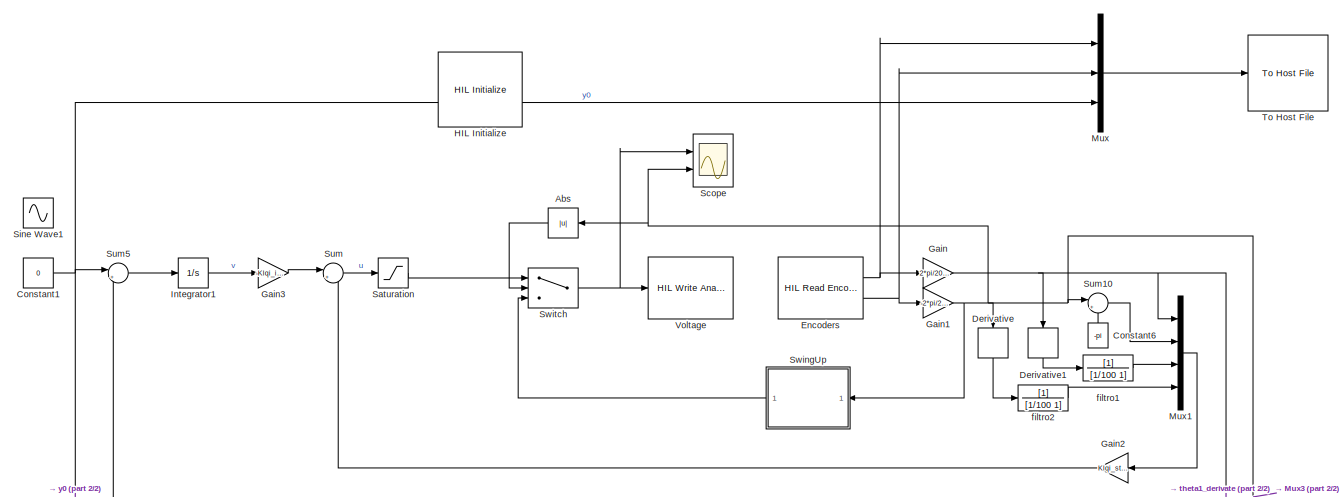
[diagram: root canvas - part 1/2, full width, top band]
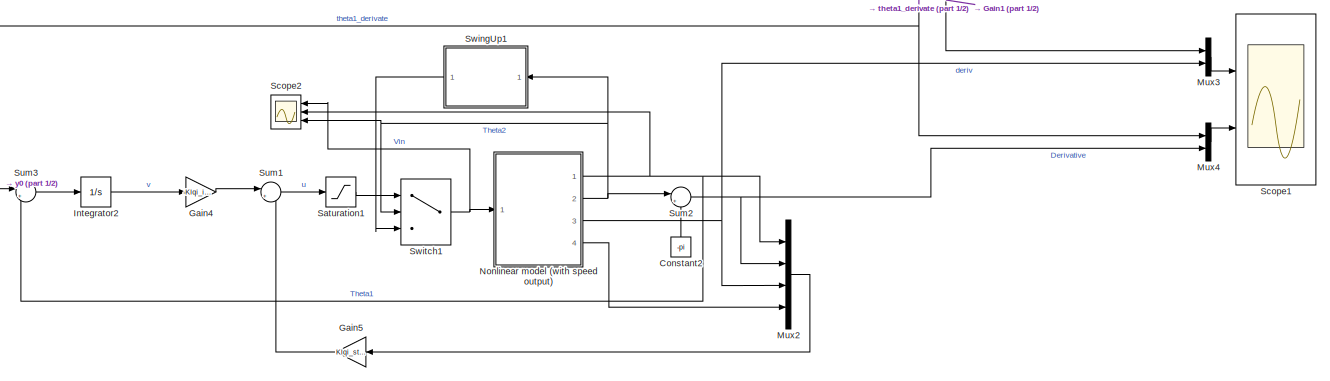
[diagram: root canvas - part 2/2, full width, bottom band]
MODEL slx_d997d301af8e
KIND model
CONFIG AbsTol = auto
CONFIG EnableMultiTasking = on
CONFIG FixedStep = 0.002
CONFIG MaxStep = auto
CONFIG MinStep = auto
CONFIG PostLoadFcn = qc_set_target_type(getConfigSet(bdroot, 'QUARC Default Target Configuration'));
CONFIG RelTol = 1e-3
CONFIG SampleTimeConstraint = Unconstrained
CONFIG Solver = ode1
CONFIG SolverName = ode1
CONFIG StartTime = 0.0
CONFIG StopTime = inf
BLOCK [Abs] Abs
  SaturateOnIntegerOverflow = off
BLOCK [Constant] Constant1
  Value = 0
BLOCK [Constant] Constant2
  Value = -pi
BLOCK [Constant] Constant6
  Value = -pi
BLOCK [Derivative] Derivative
BLOCK [Derivative] Derivative1
BLOCK [Reference] Encoders  REF=quarc_library/Data Acquisition/Generic/Timebases/HIL Read Encoder
Timebase
  AttributesFormatString = (%<object_name>)
  Ports = [0, 2]
  SourceBlock = quarc_library/Data Acquisition/Generic/Timebases/HIL Read Encoder\nTimebase
  SourceProductName = QUARC Targets
  SourceType = HIL Read Encoder Timebase
  UserDataPersistent = on
BLOCK [Gain] Gain
  Gain = 2*pi/2048
  OutDataTypeStr = Inherit: Inherit via internal rule
  ParamDataTypeStr = Inherit: Inherit via internal rule
  SaturateOnIntegerOverflow = off
BLOCK [Gain] Gain1
  Gain = -2*pi/2048
  OutDataTypeStr = Inherit: Inherit via internal rule
  ParamDataTypeStr = Inherit: Inherit via internal rule
  SaturateOnIntegerOverflow = off
BLOCK [Gain] Gain2
  Gain = Klqi_state
  Multiplication = Matrix(K*u)
  OutDataTypeStr = Inherit: Inherit via internal rule
  ParamDataTypeStr = Inherit: Inherit via internal rule
  SaturateOnIntegerOverflow = off
BLOCK [Gain] Gain3
  Gain = -Klqi_int
  Multiplication = Matrix(K*u)
  OutDataTypeStr = Inherit: Inherit via internal rule
  ParamDataTypeStr = Inherit: Inherit via internal rule
  SaturateOnIntegerOverflow = off
BLOCK [Gain] Gain4
  Gain = -Klqi_int
  Multiplication = Matrix(K*u)
  OutDataTypeStr = Inherit: Inherit via internal rule
  ParamDataTypeStr = Inherit: Inherit via internal rule
  SaturateOnIntegerOverflow = off
BLOCK [Gain] Gain5
  Gain = Klqi_state
  Multiplication = Matrix(K*u)
  OutDataTypeStr = Inherit: Inherit via internal rule
  ParamDataTypeStr = Inherit: Inherit via internal rule
  SaturateOnIntegerOverflow = off
BLOCK [Reference] HIL Initialize  REF=quarc_library/Data Acquisition/Generic/Configuration/HIL Initialize
  AttributesFormatString = %<object_name> (%<board_type>-%<board_number>)
  Ports = []
  Priority = -99
  SourceBlock = quarc_library/Data Acquisition/Generic/Configuration/HIL Initialize
  SourceProductName = QUARC Targets
  SourceType = HIL Initialize
  UserDataPersistent = on
BLOCK [Integrator] Integrator1
  Ports = [1, 1]
BLOCK [Integrator] Integrator2
  Ports = [1, 1]
BLOCK [Mux] Mux
  DisplayOption = bar
  Inputs = 3
  Ports = [3, 1]
BLOCK [Mux] Mux1
  DisplayOption = bar
  Ports = [4, 1]
BLOCK [Mux] Mux2
  DisplayOption = bar
  Ports = [4, 1]
BLOCK [Mux] Mux3
  DisplayOption = bar
  Inputs = 2
  Ports = [2, 1]
BLOCK [Mux] Mux4
  DisplayOption = bar
  Inputs = 2
  Ports = [2, 1]
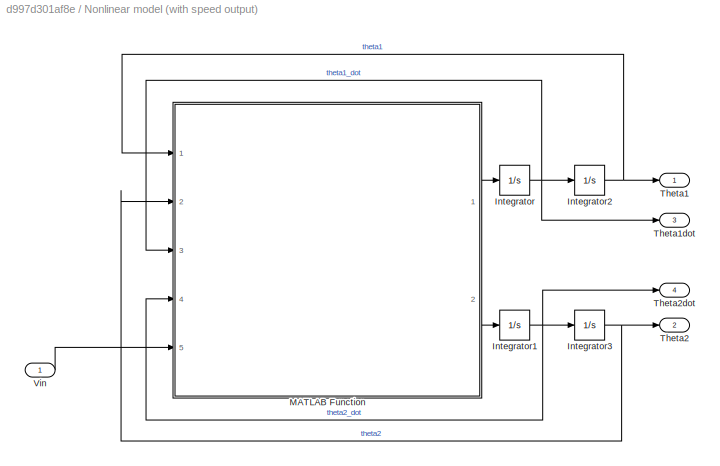
BLOCK [SubSystem] Nonlinear model (with speed output)
  Ports = [1, 4]
  RequestExecContextInheritance = off
BLOCK [Integrator] Nonlinear model (with speed output)/Integrator
  Ports = [1, 1]
BLOCK [Integrator] Nonlinear model (with speed output)/Integrator1
  Ports = [1, 1]
BLOCK [Integrator] Nonlinear model (with speed output)/Integrator2
  Ports = [1, 1]
BLOCK [Integrator] Nonlinear model (with speed output)/Integrator3
  Ports = [1, 1]
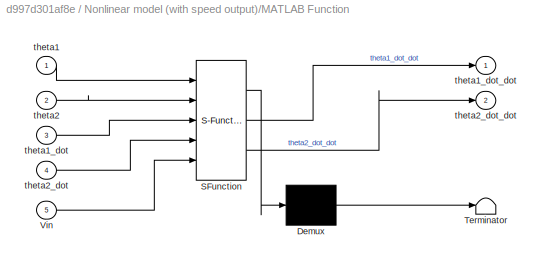
BLOCK [SubSystem] Nonlinear model (with speed output)/MATLAB Function
  ErrorFcn = Stateflow.Translate.translate
  PermitHierarchicalResolution = ExplicitOnly
  Ports = [5, 2]
  RequestExecContextInheritance = off
  SFBlockType = MATLAB Function
  TreatAsAtomicUnit = on
BLOCK [Demux] Nonlinear model (with speed output)/MATLAB Function/ Demux 
  DisplayOption = bar
  Outputs = 1
  Ports = [1, 1]
BLOCK [S-Function] Nonlinear model (with speed output)/MATLAB Function/ SFunction 
  EnableBusSupport = on
  FunctionName = sf_sfun
  Parameters = Pars
  PortCounts = [5 3]
  Ports = [5, 3]
  SFcnIsStateOwnerBlock = off
  SFunctionDeploymentMode = off
  Tag = Stateflow S-Function 4
BLOCK [Terminator] Nonlinear model (with speed output)/MATLAB Function/ Terminator 
BLOCK [Inport] Nonlinear model (with speed output)/MATLAB Function/Vin
  IconDisplay = Port number
  Port = 5
BLOCK [Inport] Nonlinear model (with speed output)/MATLAB Function/theta1
  IconDisplay = Port number
BLOCK [Inport] Nonlinear model (with speed output)/MATLAB Function/theta1_dot
  IconDisplay = Port number
  Port = 3
BLOCK [Outport] Nonlinear model (with speed output)/MATLAB Function/theta1_dot_dot
  IconDisplay = Port number
BLOCK [Inport] Nonlinear model (with speed output)/MATLAB Function/theta2
  IconDisplay = Port number
  Port = 2
BLOCK [Inport] Nonlinear model (with speed output)/MATLAB Function/theta2_dot
  IconDisplay = Port number
  Port = 4
BLOCK [Outport] Nonlinear model (with speed output)/MATLAB Function/theta2_dot_dot
  IconDisplay = Port number
  Port = 2
BLOCK [Outport] Nonlinear model (with speed output)/Theta1
  IconDisplay = Port number
BLOCK [Outport] Nonlinear model (with speed output)/Theta1dot
  IconDisplay = Port number
  Port = 3
BLOCK [Outport] Nonlinear model (with speed output)/Theta2
  IconDisplay = Port number
  Port = 2
BLOCK [Outport] Nonlinear model (with speed output)/Theta2dot
  IconDisplay = Port number
  Port = 4
BLOCK [Inport] Nonlinear model (with speed output)/Vin
  IconDisplay = Port number
BLOCK [Saturate] Saturation
  InputPortMap = u0
  LowerLimit = -10
  Ports = [1, 1]
  UpperLimit = 10
BLOCK [Saturate] Saturation1
  InputPortMap = u0
  LowerLimit = -10
  Ports = [1, 1]
  UpperLimit = 10
BLOCK [Scope] Scope
  Floating = off
  NumInputPorts = 2
  Ports = [2]
  ScopeSpecificationString = Simulink.scopes.TimeScopeBlockCfg('CurrentConfiguration', extmgr.ConfigurationSet(extmgr.Configuration('Core','General UI',true),extmgr.Configuration('Core','Source UI',true),extmgr.Configuration('Sources','WiredSimulink',true,'DataLoggingVariableName','ScopeData1'),extmgr.Configuration('Visuals','Time Domain',true,'SerializedDisplays',{struct('MinYLimReal','-14.05143','MaxYLimReal','26.46289','YL...<+1476ch>
BLOCK [Scope] Scope1
  Floating = off
  NumInputPorts = 2
  Ports = [2]
  ScopeSpecificationString = Simulink.scopes.TimeScopeBlockCfg('CurrentConfiguration', extmgr.ConfigurationSet(extmgr.Configuration('Core','General UI',true),extmgr.Configuration('Core','Source UI',true),extmgr.Configuration('Sources','WiredSimulink',true,'DataLoggingVariableName','ScopeData2'),extmgr.Configuration('Visuals','Time Domain',true,'SerializedDisplays',{struct('MinYLimReal','-14.59408','MaxYLimReal','17.43581','YL...<+2135ch>
BLOCK [Scope] Scope2
  Floating = off
  NumInputPorts = 3
  Ports = [3]
  ScopeSpecificationString = Simulink.scopes.TimeScopeBlockCfg('CurrentConfiguration', extmgr.ConfigurationSet(extmgr.Configuration('Core','General UI',true),extmgr.Configuration('Core','Source UI',true),extmgr.Configuration('Sources','WiredSimulink',true,'DataLoggingVariableName','ScopeData1'),extmgr.Configuration('Visuals','Time Domain',true,'SerializedDisplays',{struct('MinYLimReal','-15.93401','MaxYLimReal','15.73894','YL...<+1436ch>
BLOCK [Sin] Sine Wave1
  Ports = [0, 1]
  SampleTime = 0
BLOCK [Sum] Sum
  IconShape = round
  InputSameDT = off
  Inputs = |+-
  OutDataTypeStr = Inherit: Inherit via internal rule
  Ports = [2, 1]
  SaturateOnIntegerOverflow = off
BLOCK [Sum] Sum1
  IconShape = round
  InputSameDT = off
  Inputs = |+-
  OutDataTypeStr = Inherit: Inherit via internal rule
  Ports = [2, 1]
  SaturateOnIntegerOverflow = off
BLOCK [Sum] Sum10
  IconShape = round
  InputSameDT = off
  Inputs = |++
  OutDataTypeStr = Inherit: Inherit via internal rule
  Ports = [2, 1]
  SaturateOnIntegerOverflow = off
BLOCK [Sum] Sum2
  IconShape = round
  InputSameDT = off
  Inputs = |++
  OutDataTypeStr = Inherit: Inherit via internal rule
  Ports = [2, 1]
  SaturateOnIntegerOverflow = off
BLOCK [Sum] Sum3
  IconShape = round
  InputSameDT = off
  Inputs = |+-
  OutDataTypeStr = Inherit: Inherit via internal rule
  Ports = [2, 1]
  SaturateOnIntegerOverflow = off
BLOCK [Sum] Sum5
  IconShape = round
  InputSameDT = off
  Inputs = |+-
  OutDataTypeStr = Inherit: Inherit via internal rule
  Ports = [2, 1]
  SaturateOnIntegerOverflow = off
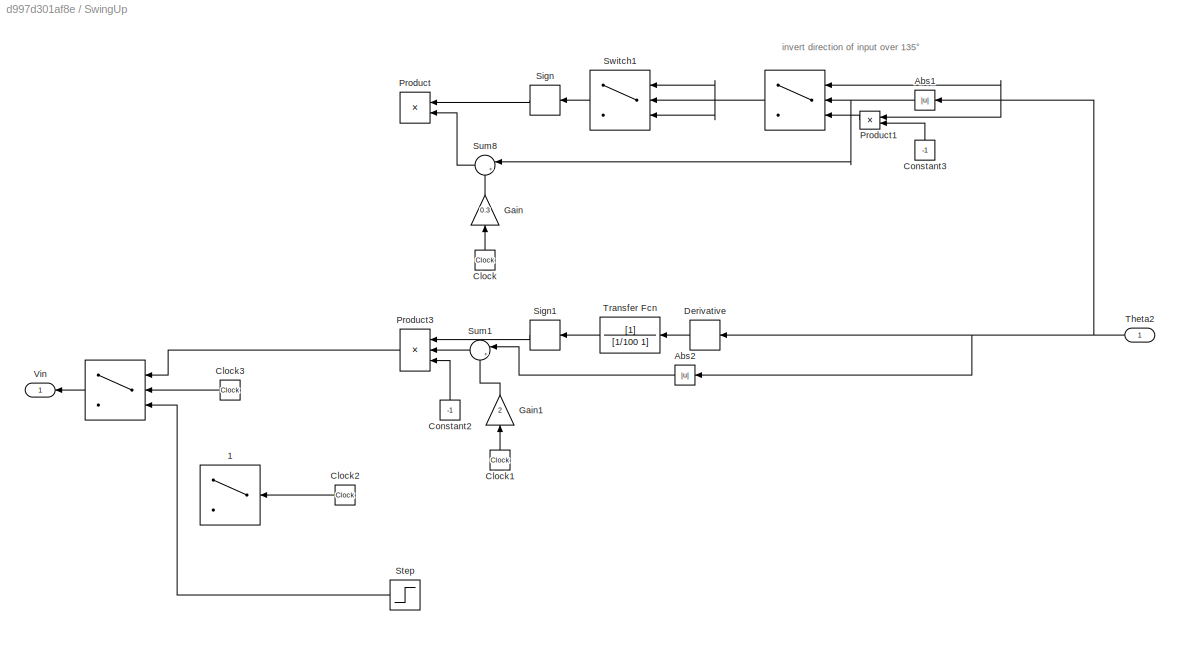
BLOCK [SubSystem] SwingUp
  Ports = [1, 1]
  RequestExecContextInheritance = off
BLOCK [Switch] SwingUp/ 
  Criteria = u2 > Threshold
  InputSameDT = off
  SaturateOnIntegerOverflow = off
  Threshold = 0.2
BLOCK [Switch] SwingUp/ 1
  Criteria = u2 > Threshold
  InputSameDT = off
  SaturateOnIntegerOverflow = off
  Threshold = 0.4
BLOCK [Abs] SwingUp/Abs1
  Commented = on
  SaturateOnIntegerOverflow = off
BLOCK [Abs] SwingUp/Abs2
  SaturateOnIntegerOverflow = off
BLOCK [Clock] SwingUp/Clock
  Commented = on
BLOCK [Clock] SwingUp/Clock1
BLOCK [Clock] SwingUp/Clock2
BLOCK [Clock] SwingUp/Clock3
BLOCK [Constant] SwingUp/Constant2
  Value = -1
BLOCK [Constant] SwingUp/Constant3
  Commented = on
  Value = -1
BLOCK [Derivative] SwingUp/Derivative
  Commented = through
BLOCK [Gain] SwingUp/Gain
  Commented = on
  Gain = 0.3
  OutDataTypeStr = Inherit: Inherit via internal rule
  ParamDataTypeStr = Inherit: Inherit via internal rule
  SaturateOnIntegerOverflow = off
BLOCK [Gain] SwingUp/Gain1
  Gain = 2
  OutDataTypeStr = Inherit: Inherit via internal rule
  ParamDataTypeStr = Inherit: Inherit via internal rule
  SaturateOnIntegerOverflow = off
BLOCK [Product] SwingUp/Product
  Commented = on
  InputSameDT = off
  OutDataTypeStr = Inherit: Inherit via internal rule
  Ports = [2, 1]
  RndMeth = Floor
  SaturateOnIntegerOverflow = off
BLOCK [Product] SwingUp/Product1
  Commented = on
  InputSameDT = off
  OutDataTypeStr = Inherit: Inherit via internal rule
  Ports = [2, 1]
  RndMeth = Floor
  SaturateOnIntegerOverflow = off
BLOCK [Product] SwingUp/Product3
  InputSameDT = off
  Inputs = 3
  OutDataTypeStr = Inherit: Inherit via internal rule
  Ports = [3, 1]
  RndMeth = Floor
  SaturateOnIntegerOverflow = off
BLOCK [Signum] SwingUp/Sign
  Commented = on
BLOCK [Signum] SwingUp/Sign1
BLOCK [Step] SwingUp/Step
  SampleTime = 0
  Time = 0
BLOCK [Sum] SwingUp/Sum1
  IconShape = round
  InputSameDT = off
  Inputs = |++
  OutDataTypeStr = Inherit: Inherit via internal rule
  Ports = [2, 1]
  SaturateOnIntegerOverflow = off
BLOCK [Sum] SwingUp/Sum8
  Commented = on
  IconShape = round
  InputSameDT = off
  Inputs = |++
  OutDataTypeStr = Inherit: Inherit via internal rule
  Ports = [2, 1]
  SaturateOnIntegerOverflow = off
BLOCK [Switch] SwingUp/Switch1
  Commented = on
  Criteria = u2 > Threshold
  InputSameDT = off
  SaturateOnIntegerOverflow = off
BLOCK [Inport] SwingUp/Theta2
  IconDisplay = Port number
BLOCK [TransferFcn] SwingUp/Transfer Fcn
  Commented = through
  Denominator = [1/100 1]
BLOCK [Outport] SwingUp/Vin
  IconDisplay = Port number
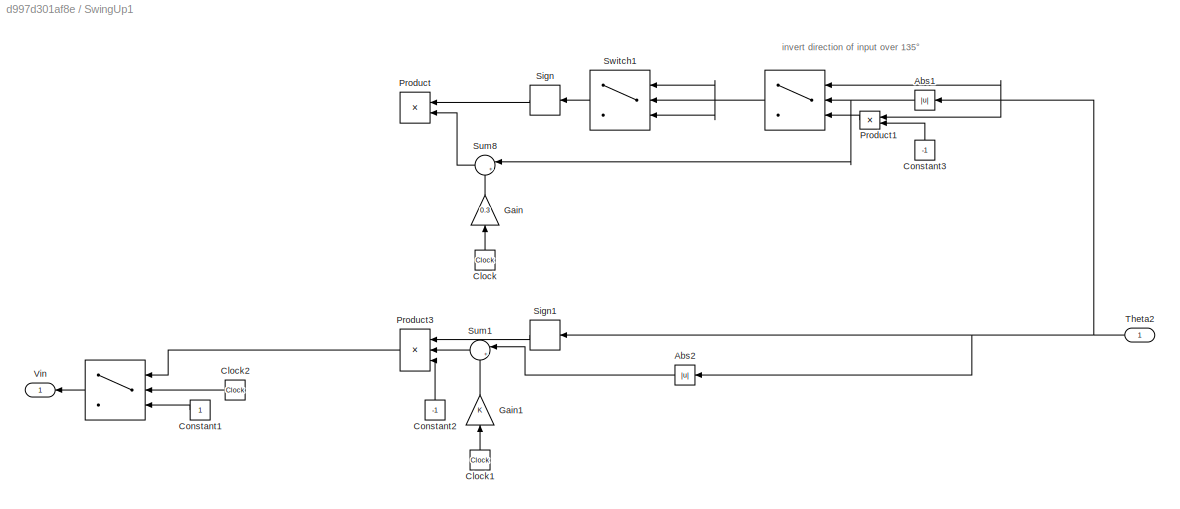
BLOCK [SubSystem] SwingUp1
  Ports = [1, 1]
  RequestExecContextInheritance = off
BLOCK [Switch] SwingUp1/ 
  Criteria = u2 > Threshold
  InputSameDT = off
  SaturateOnIntegerOverflow = off
  Threshold = 0.2
BLOCK [Abs] SwingUp1/Abs1
  Commented = on
  SaturateOnIntegerOverflow = off
BLOCK [Abs] SwingUp1/Abs2
  SaturateOnIntegerOverflow = off
BLOCK [Clock] SwingUp1/Clock
  Commented = on
BLOCK [Clock] SwingUp1/Clock1
BLOCK [Clock] SwingUp1/Clock2
BLOCK [Constant] SwingUp1/Constant1
BLOCK [Constant] SwingUp1/Constant2
  Value = -1
BLOCK [Constant] SwingUp1/Constant3
  Commented = on
  Value = -1
BLOCK [Gain] SwingUp1/Gain
  Commented = on
  Gain = 0.3
  OutDataTypeStr = Inherit: Inherit via internal rule
  ParamDataTypeStr = Inherit: Inherit via internal rule
  SaturateOnIntegerOverflow = off
BLOCK [Gain] SwingUp1/Gain1
  OutDataTypeStr = Inherit: Inherit via internal rule
  ParamDataTypeStr = Inherit: Inherit via internal rule
  SaturateOnIntegerOverflow = off
BLOCK [Product] SwingUp1/Product
  Commented = on
  InputSameDT = off
  OutDataTypeStr = Inherit: Inherit via internal rule
  Ports = [2, 1]
  RndMeth = Floor
  SaturateOnIntegerOverflow = off
BLOCK [Product] SwingUp1/Product1
  Commented = on
  InputSameDT = off
  OutDataTypeStr = Inherit: Inherit via internal rule
  Ports = [2, 1]
  RndMeth = Floor
  SaturateOnIntegerOverflow = off
BLOCK [Product] SwingUp1/Product3
  InputSameDT = off
  Inputs = 3
  OutDataTypeStr = Inherit: Inherit via internal rule
  Ports = [3, 1]
  RndMeth = Floor
  SaturateOnIntegerOverflow = off
BLOCK [Signum] SwingUp1/Sign
  Commented = on
BLOCK [Signum] SwingUp1/Sign1
BLOCK [Sum] SwingUp1/Sum1
  IconShape = round
  InputSameDT = off
  Inputs = |++
  OutDataTypeStr = Inherit: Inherit via internal rule
  Ports = [2, 1]
  SaturateOnIntegerOverflow = off
BLOCK [Sum] SwingUp1/Sum8
  Commented = on
  IconShape = round
  InputSameDT = off
  Inputs = |++
  OutDataTypeStr = Inherit: Inherit via internal rule
  Ports = [2, 1]
  SaturateOnIntegerOverflow = off
BLOCK [Switch] SwingUp1/Switch1
  Commented = on
  Criteria = u2 > Threshold
  InputSameDT = off
  SaturateOnIntegerOverflow = off
BLOCK [Inport] SwingUp1/Theta2
  IconDisplay = Port number
BLOCK [Outport] SwingUp1/Vin
  IconDisplay = Port number
BLOCK [Switch] Switch
  Criteria = u2 > Threshold
  InputSameDT = off
  SaturateOnIntegerOverflow = off
  Threshold = 17/18*pi
BLOCK [Switch] Switch1
  Criteria = u2 > Threshold
  InputSameDT = off
  SaturateOnIntegerOverflow = off
  Threshold = 17/18*pi
BLOCK [Reference] To Host File  REF=quarc_library/Sinks/To Host/To Host File
  AttributesFormatString = %<final_file_name>
  Ports = [1]
  SourceBlock = quarc_library/Sinks/To Host/To Host File
  SourceProductName = QUARC Targets
  SourceType = To Host File
BLOCK [Reference] Voltage  REF=quarc_library/Data Acquisition/Generic/Immediate I//O/HIL Write Analog
  AttributesFormatString = (%<object_name>)
  Ports = [1]
  SourceBlock = quarc_library/Data Acquisition/Generic/Immediate I//O/HIL Write Analog
  SourceProductName = QUARC Targets
  SourceType = HIL Write Analog
  UserDataPersistent = on
BLOCK [TransferFcn] filtro1 
  Denominator = [1/100 1]
BLOCK [TransferFcn] filtro2
  Denominator = [1/100 1]
ANNOTATION SwingUp: invert direction of input over 135°
ANNOTATION SwingUp1: invert direction of input over 135°
LINE Abs:1 -> Switch:2
NET Constant1:1 -> Mux:3, Sum3:1, Sum5:1
LINE Constant2:1 -> Sum2:2
LINE Constant6:1 -> Sum10:2
LINE Derivative1:1 -> filtro1 :1
LINE Derivative:1 -> filtro2:1
NET Encoders:1 -> Gain:1, Mux:1
NET Encoders:2 -> Gain1:1, Mux:2
NET Gain1:1 -> Abs:1, Derivative:1, Mux3:1, Scope:2, Sum10:1, SwingUp:1
LINE Gain2:1 -> Sum:2
LINE Gain3:1 -> Sum:1
LINE Gain4:1 -> Sum1:1
LINE Gain5:1 -> Sum1:2
NET Gain:1 -> Derivative1:1, Mux1:1, Mux4:1, Sum5:2
LINE Integrator1:1 -> Gain3:1
LINE Integrator2:1 -> Gain4:1
LINE Mux1:1 -> Gain2:1
LINE Mux2:1 -> Gain5:1
LINE Mux3:1 -> Scope1:1
LINE Mux4:1 -> Scope1:2
LINE Mux:1 -> To Host File:1
NET Nonlinear model (with speed output)/Integrator1:1 -> Nonlinear model (with speed output)/Integrator3:1, Nonlinear model (with speed output)/MATLAB Function:4, Nonlinear model (with speed output)/Theta2dot:1
NET Nonlinear model (with speed output)/Integrator2:1 -> Nonlinear model (with speed output)/MATLAB Function:1, Nonlinear model (with speed output)/Theta1:1
NET Nonlinear model (with speed output)/Integrator3:1 -> Nonlinear model (with speed output)/MATLAB Function:2, Nonlinear model (with speed output)/Theta2:1
NET Nonlinear model (with speed output)/Integrator:1 -> Nonlinear model (with speed output)/Integrator2:1, Nonlinear model (with speed output)/MATLAB Function:3, Nonlinear model (with speed output)/Theta1dot:1
LINE Nonlinear model (with speed output)/MATLAB Function:1 -> Nonlinear model (with speed output)/Integrator:1
LINE Nonlinear model (with speed output)/MATLAB Function:2 -> Nonlinear model (with speed output)/Integrator1:1
LINE Nonlinear model (with speed output)/Vin:1 -> Nonlinear model (with speed output)/MATLAB Function:5
NET Nonlinear model (with speed output):1 -> Mux2:1, Scope2:2, Sum3:2
NET Nonlinear model (with speed output):2 -> Scope2:3, Sum2:1, SwingUp1:1, Switch1:2
NET Nonlinear model (with speed output):3 -> Mux2:3, Mux3:2
LINE Nonlinear model (with speed output):4 -> Mux2:4
LINE Saturation1:1 -> Switch1:1
LINE Saturation:1 -> Switch:1
LINE Sum10:1 -> Mux1:2
LINE Sum1:1 -> Saturation1:1
NET Sum2:1 -> Mux2:2, Mux4:2
LINE Sum3:1 -> Integrator2:1
LINE Sum5:1 -> Integrator1:1
LINE Sum:1 -> Saturation:1
NET SwingUp/ :1 -> SwingUp/Switch1:1, SwingUp/Switch1:2, SwingUp/Switch1:3, SwingUp/Vin:1
NET SwingUp/Abs1:1 -> SwingUp/ :2, SwingUp/Sum8:1
LINE SwingUp/Abs2:1 -> SwingUp/Sum1:1
LINE SwingUp/Clock1:1 -> SwingUp/Gain1:1
LINE SwingUp/Clock2:1 -> SwingUp/ 1:2
LINE SwingUp/Clock3:1 -> SwingUp/ :2
LINE SwingUp/Clock:1 -> SwingUp/Gain:1
LINE SwingUp/Constant2:1 -> SwingUp/Product3:3
LINE SwingUp/Constant3:1 -> SwingUp/Product1:2
LINE SwingUp/Derivative:1 -> SwingUp/Transfer Fcn:1
LINE SwingUp/Gain1:1 -> SwingUp/Sum1:2
LINE SwingUp/Gain:1 -> SwingUp/Sum8:2
LINE SwingUp/Product1:1 -> SwingUp/ :3
LINE SwingUp/Product3:1 -> SwingUp/ :1
LINE SwingUp/Sign1:1 -> SwingUp/Product3:1
LINE SwingUp/Sign:1 -> SwingUp/Product:1
LINE SwingUp/Step:1 -> SwingUp/ :3
LINE SwingUp/Sum1:1 -> SwingUp/Product3:2
LINE SwingUp/Sum8:1 -> SwingUp/Product:2
LINE SwingUp/Switch1:1 -> SwingUp/Sign:1
NET SwingUp/Theta2:1 -> SwingUp/ :1, SwingUp/Abs1:1, SwingUp/Abs2:1, SwingUp/Derivative:1, SwingUp/Product1:1
LINE SwingUp/Transfer Fcn:1 -> SwingUp/Sign1:1
NET SwingUp1/ :1 -> SwingUp1/Switch1:1, SwingUp1/Switch1:2, SwingUp1/Switch1:3, SwingUp1/Vin:1
NET SwingUp1/Abs1:1 -> SwingUp1/ :2, SwingUp1/Sum8:1
LINE SwingUp1/Abs2:1 -> SwingUp1/Sum1:1
LINE SwingUp1/Clock1:1 -> SwingUp1/Gain1:1
LINE SwingUp1/Clock2:1 -> SwingUp1/ :2
LINE SwingUp1/Clock:1 -> SwingUp1/Gain:1
LINE SwingUp1/Constant1:1 -> SwingUp1/ :3
LINE SwingUp1/Constant2:1 -> SwingUp1/Product3:3
LINE SwingUp1/Constant3:1 -> SwingUp1/Product1:2
LINE SwingUp1/Gain1:1 -> SwingUp1/Sum1:2
LINE SwingUp1/Gain:1 -> SwingUp1/Sum8:2
LINE SwingUp1/Product1:1 -> SwingUp1/ :3
LINE SwingUp1/Product3:1 -> SwingUp1/ :1
LINE SwingUp1/Sign1:1 -> SwingUp1/Product3:1
LINE SwingUp1/Sign:1 -> SwingUp1/Product:1
LINE SwingUp1/Sum1:1 -> SwingUp1/Product3:2
LINE SwingUp1/Sum8:1 -> SwingUp1/Product:2
LINE SwingUp1/Switch1:1 -> SwingUp1/Sign:1
NET SwingUp1/Theta2:1 -> SwingUp1/ :1, SwingUp1/Abs1:1, SwingUp1/Abs2:1, SwingUp1/Product1:1, SwingUp1/Sign1:1
LINE SwingUp1:1 -> Switch1:3
LINE SwingUp:1 -> Switch:3
NET Switch1:1 -> Nonlinear model (with speed output):1, Scope2:1
NET Switch:1 -> Scope:1, Voltage:1
LINE filtro1 :1 -> Mux1:3
LINE filtro2:1 -> Mux1:4
note: NET lines group one-source signal fan-out (src -> all destinations, sorted); 1:1 wires keep LINE
CHART Nonlinear model
(with speed output)/MATLAB Function states=1 transitions=1
  STATE_LABEL 'eML_blk_kernel()'
  STATE_LABEL 'SCRIPT:\nfunction [theta1_dot_dot,theta2_dot_dot] = fcn(theta1, theta2, theta1_dot, theta2_dot,Vin, Pars)\n\n   k1 = Pars.Jeq + Pars.m2*(Pars.l1^2 + Pars.x2^2*sin(theta2)^2);\n   k2 = Pars.m2*Pars.l1*Pars.x2*cos(theta2);\n   k3 = 2*Pars.m2*Pars.x2^2*sin(theta2)*cos(theta2)*theta1_dot*theta2_dot - Pars.m2*Pars.l1*Pars.x2*sin(theta2)*theta2_dot^2 +Pars.Ks*theta1 - Pars.Km/Pars.Rm*Vin + (Pars.Km^2)/Pars.R...<+346ch>'
